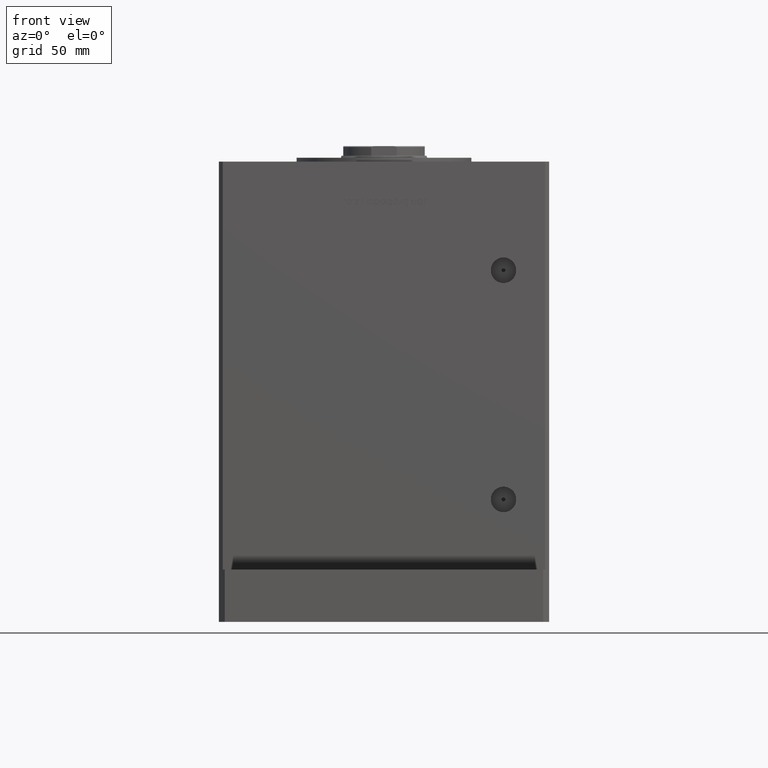
[diagram: clean part render]
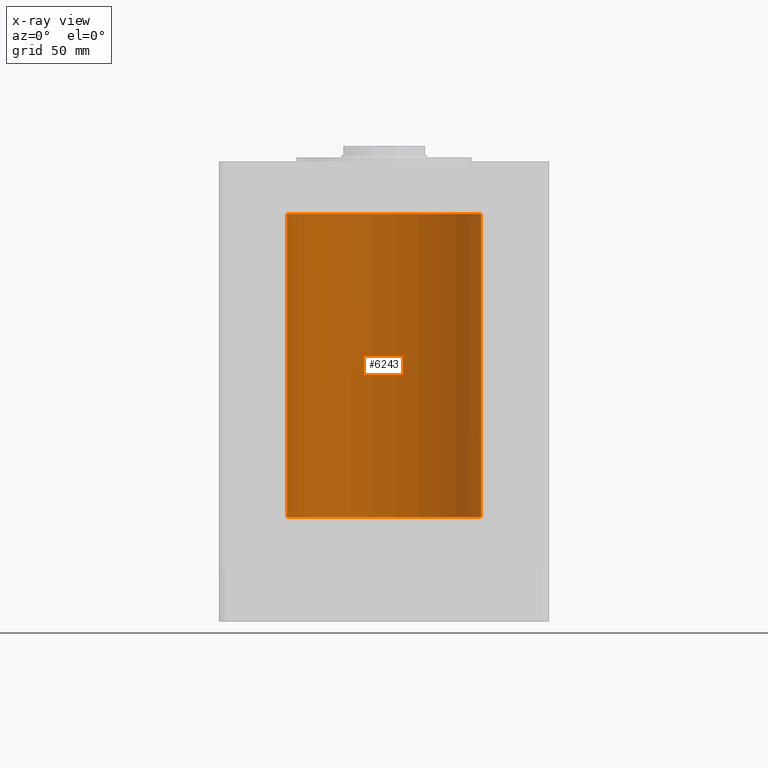
[diagram: x-ray — body ghosted, one internal face saturated and labeled with its STEP entity id]
A machine part, front view, then the same camera in x-ray: the body is ghosted and one INTERNAL B-rep face — a face not visible from any outside direction — is saturated and labeled: STEP entity #6243.
In plain terms, the highlighted cylindrical surface (partial cylindrical patch) has radius 50 mm, axis along (-0, -0, -1).
Its self-contained STEP definition (entity closure, byte-faithful):
#4808 = ORIENTED_EDGE ( 'NONE', *, *, #45857, .F. ) ;
#6176 = FACE_OUTER_BOUND ( 'NONE', #33603, .T. ) ;
#6243 = ADVANCED_FACE ( 'NONE', ( #6176 ), #19853, .F. ) ;
#6453 = DIRECTION ( 'NONE',  ( -0.000000000000000000, -0.000000000000000000, -1.000000000000000000 ) ) ;
#7532 = CARTESIAN_POINT ( 'NONE',  ( 0.000000000000000000, 0.000000000000000000, 156.0000000000000000 ) ) ;
#10314 = CIRCLE ( 'NONE', #31271, 50.00000000000000000 ) ;
#13000 = ORIENTED_EDGE ( 'NONE', *, *, #15962, .T. ) ;
#15891 = CARTESIAN_POINT ( 'NONE',  ( 50.00000000000000000, 6.123233995736766085E-15, 156.0000000000000000 ) ) ;
#15962 = EDGE_CURVE ( 'NONE', #37756, #24920, #45606, .T. ) ;
#19853 = CYLINDRICAL_SURFACE ( 'NONE', #29972, 50.00000000000000000 ) ;
#20066 = ORIENTED_EDGE ( 'NONE', *, *, #26013, .F. ) ;
#20497 = CARTESIAN_POINT ( 'NONE',  ( -50.00000000000000000, 0.000000000000000000, 0.000000000000000000 ) ) ;
#21340 = CARTESIAN_POINT ( 'NONE',  ( -50.00000000000000000, 0.000000000000000000, 156.0000000000000000 ) ) ;
#22194 = VERTEX_POINT ( 'NONE', #30775 ) ;
#22833 = DIRECTION ( 'NONE',  ( -0.000000000000000000, -0.000000000000000000, -1.000000000000000000 ) ) ;
#24825 = VECTOR ( 'NONE', #22833, 1000.000000000000000 ) ;
#24920 = VERTEX_POINT ( 'NONE', #34338 ) ;
#26013 = EDGE_CURVE ( 'NONE', #37756, #22194, #31950, .T. ) ;
#27385 = CARTESIAN_POINT ( 'NONE',  ( 0.000000000000000000, 0.000000000000000000, 0.000000000000000000 ) ) ;
#27389 = AXIS2_PLACEMENT_3D ( 'NONE', #7532, #54867, #33488 ) ;
#29972 = AXIS2_PLACEMENT_3D ( 'NONE', #40973, #6453, #31853 ) ;
#30775 = CARTESIAN_POINT ( 'NONE',  ( 50.00000000000000000, 6.123233995736766085E-15, 0.000000000000000000 ) ) ;
#31271 = AXIS2_PLACEMENT_3D ( 'NONE', #27385, #36235, #53882 ) ;
#31853 = DIRECTION ( 'NONE',  ( -1.000000000000000000, 0.000000000000000000, 0.000000000000000000 ) ) ;
#31950 = LINE ( 'NONE', #15891, #24825 ) ;
#32145 = VECTOR ( 'NONE', #37935, 1000.000000000000000 ) ;
#33488 = DIRECTION ( 'NONE',  ( 1.000000000000000000, 0.000000000000000000, 0.000000000000000000 ) ) ;
#33603 = EDGE_LOOP ( 'NONE', ( #20066, #13000, #41887, #4808 ) ) ;
#34338 = CARTESIAN_POINT ( 'NONE',  ( -50.00000000000000000, 0.000000000000000000, 156.0000000000000000 ) ) ;
#36235 = DIRECTION ( 'NONE',  ( -0.000000000000000000, 0.000000000000000000, 1.000000000000000000 ) ) ;
#37756 = VERTEX_POINT ( 'NONE', #54271 ) ;
#37935 = DIRECTION ( 'NONE',  ( -0.000000000000000000, -0.000000000000000000, -1.000000000000000000 ) ) ;
#38773 = LINE ( 'NONE', #21340, #32145 ) ;
#40973 = CARTESIAN_POINT ( 'NONE',  ( 0.000000000000000000, 0.000000000000000000, 156.0000000000000000 ) ) ;
#41887 = ORIENTED_EDGE ( 'NONE', *, *, #44729, .T. ) ;
#44729 = EDGE_CURVE ( 'NONE', #24920, #49066, #38773, .T. ) ;
#45606 = CIRCLE ( 'NONE', #27389, 50.00000000000000000 ) ;
#45857 = EDGE_CURVE ( 'NONE', #22194, #49066, #10314, .T. ) ;
#49066 = VERTEX_POINT ( 'NONE', #20497 ) ;
#53882 = DIRECTION ( 'NONE',  ( 1.000000000000000000, 0.000000000000000000, 0.000000000000000000 ) ) ;
#54271 = CARTESIAN_POINT ( 'NONE',  ( 50.00000000000000000, 6.123233995736766085E-15, 156.0000000000000000 ) ) ;
#54867 = DIRECTION ( 'NONE',  ( -0.000000000000000000, 0.000000000000000000, 1.000000000000000000 ) ) ;